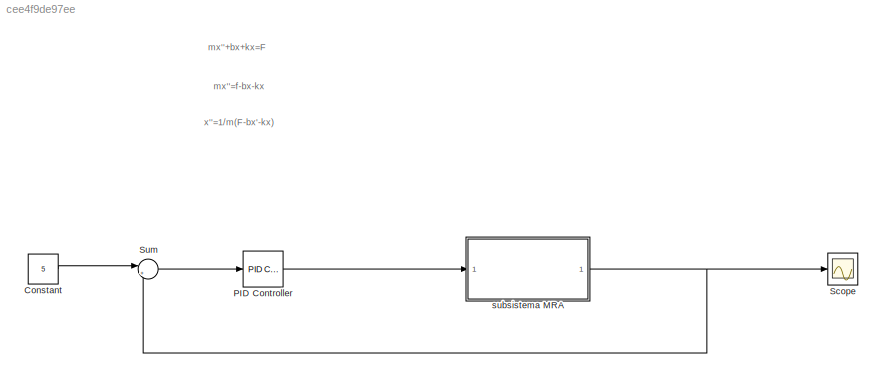
MODEL slx_cee4f9de97ee
KIND model
CONFIG AbsTol = auto
CONFIG EnableMultiTasking = off
CONFIG FixedStep = auto
CONFIG MaxStep = auto
CONFIG MinStep = auto
CONFIG RelTol = 1e-3
CONFIG SampleTimeConstraint = Unconstrained
CONFIG Solver = VariableStepAuto
CONFIG SolverName = VariableStepAuto
CONFIG StartTime = 0.0
CONFIG StopTime = 50.0
BLOCK [Constant] Constant
  Value = 5
BLOCK [Reference] PID Controller  REF=simulink/Continuous/PID Controller
  Ports = [1, 1]
  SourceBlock = simulink/Continuous/PID Controller
  SourceProductBaseCode = SL
  SourceProductName = Simulink
  SourceType = PID 1dof
BLOCK [Scope] Scope
  Floating = off
  NumInputPorts = 1
  Ports = [1]
  ScopeSpecificationString = Simulink.scopes.TimeScopeBlockCfg('CurrentConfiguration', extmgr.ConfigurationSet(extmgr.Configuration('Core','General UI',true),extmgr.Configuration('Core','Source UI',true),extmgr.Configuration('Sources','WiredSimulink',true),extmgr.Configuration('Visuals','Time Domain',true,'SerializedDisplays',{struct('MinYLimReal','-31.24309','MaxYLimReal','42.23608','YLabelReal','','MinYLimMag','0.00000','Ma...<+1368ch>
BLOCK [Sum] Sum
  IconShape = round
  InputSameDT = off
  Inputs = |+-
  OutDataTypeStr = Inherit: Inherit via internal rule
  Ports = [2, 1]
  SaturateOnIntegerOverflow = off
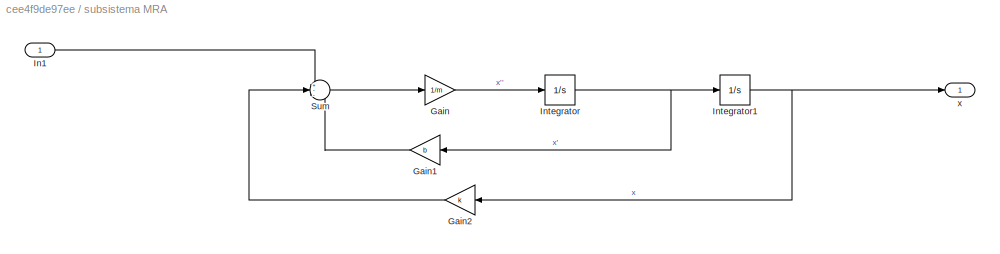
BLOCK [SubSystem] subsistema MRA
  Ports = [1, 1]
  RequestExecContextInheritance = off
BLOCK [Gain] subsistema MRA/Gain
  Gain = 1/m
  OutDataTypeStr = Inherit: Inherit via internal rule
  ParamDataTypeStr = Inherit: Inherit via internal rule
  SaturateOnIntegerOverflow = off
BLOCK [Gain] subsistema MRA/Gain1
  Gain = b
  OutDataTypeStr = Inherit: Inherit via internal rule
  ParamDataTypeStr = Inherit: Inherit via internal rule
  SaturateOnIntegerOverflow = off
BLOCK [Gain] subsistema MRA/Gain2
  Gain = k
  OutDataTypeStr = Inherit: Inherit via internal rule
  ParamDataTypeStr = Inherit: Inherit via internal rule
  SaturateOnIntegerOverflow = off
BLOCK [Inport] subsistema MRA/In1
  IconDisplay = Port number
BLOCK [Integrator] subsistema MRA/Integrator
  Ports = [1, 1]
BLOCK [Integrator] subsistema MRA/Integrator1
  Ports = [1, 1]
BLOCK [Sum] subsistema MRA/Sum
  IconShape = round
  InputSameDT = off
  Inputs = +--
  OutDataTypeStr = Inherit: Inherit via internal rule
  Ports = [3, 1]
  SaturateOnIntegerOverflow = off
BLOCK [Outport] subsistema MRA/x
  IconDisplay = Port number
ANNOTATION (root): mx''+bx+kx=F
ANNOTATION (root): mx''=f-bx-kx
ANNOTATION (root): x''=1/m(F-bx'-kx)
LINE Constant:1 -> Sum:1
LINE PID Controller:1 -> subsistema MRA:1
LINE Sum:1 -> PID Controller:1
LINE subsistema MRA/Gain1:1 -> subsistema MRA/Sum:3
LINE subsistema MRA/Gain2:1 -> subsistema MRA/Sum:2
LINE subsistema MRA/Gain:1 -> subsistema MRA/Integrator:1
LINE subsistema MRA/In1:1 -> subsistema MRA/Sum:1
NET subsistema MRA/Integrator1:1 -> subsistema MRA/Gain2:1, subsistema MRA/x:1
NET subsistema MRA/Integrator:1 -> subsistema MRA/Gain1:1, subsistema MRA/Integrator1:1
LINE subsistema MRA/Sum:1 -> subsistema MRA/Gain:1
NET subsistema MRA:1 -> Scope:1, Sum:2
note: NET lines group one-source signal fan-out (src -> all destinations, sorted); 1:1 wires keep LINE
